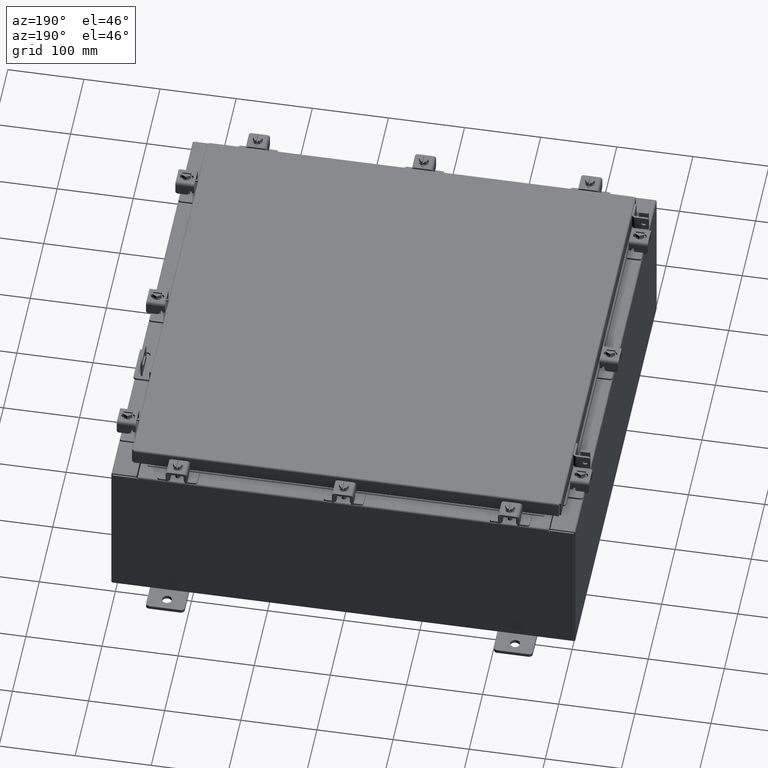
[diagram: clean part render]
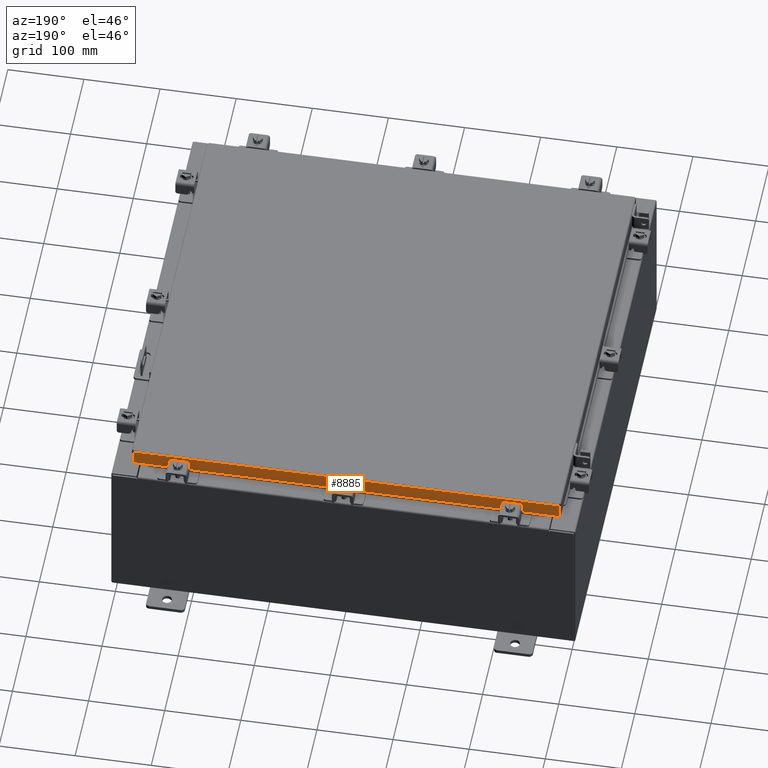
[diagram: same view with one face highlighted and labeled with its STEP entity id]
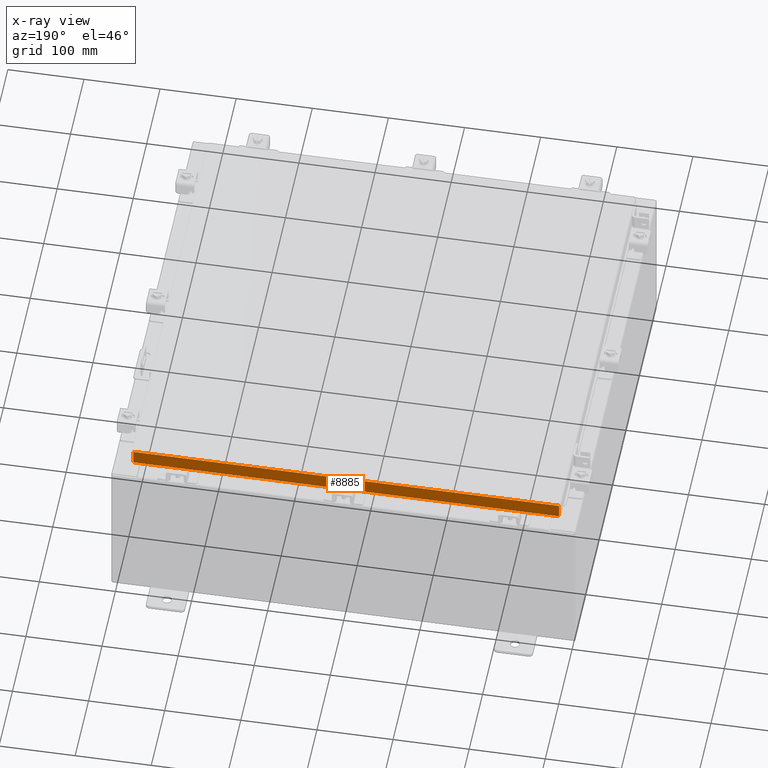
[diagram: x-ray of the same camera — body ghosted, the highlighted face saturated]
A machine part, auxiliary view. The second image highlights one B-rep face of the part: STEP entity #8885.
The next image is the same camera in x-ray: the body ghosted, the highlighted face saturated — about 0% of this face is hidden behind the body in this view.
In plain terms, the highlighted planar face has unit normal (0, -1, -0).
Its self-contained STEP definition (entity closure, byte-faithful):
#803 = EDGE_CURVE ( 'NONE', #3286, #906, #19924, .T. ) ;
#906 = VERTEX_POINT ( 'NONE', #9811 ) ;
#1060 = LINE ( 'NONE', #1516, #9816 ) ;
#1185 = ORIENTED_EDGE ( 'NONE', *, *, #803, .F. ) ;
#1284 = VERTEX_POINT ( 'NONE', #8268 ) ;
#1481 = ORIENTED_EDGE ( 'NONE', *, *, #5397, .F. ) ;
#1515 = VECTOR ( 'NONE', #4320, 39.37007874015748100 ) ;
#1516 = CARTESIAN_POINT ( 'NONE',  ( -11.09399999999999900, 11.09400000000000100, -0.8500000000000020900 ) ) ;
#1852 = EDGE_CURVE ( 'NONE', #5447, #1284, #11168, .T. ) ;
#2973 = CARTESIAN_POINT ( 'NONE',  ( -11.00515786437626700, 11.09400000000000100, -0.8500000000000020900 ) ) ;
#3286 = VERTEX_POINT ( 'NONE', #2973 ) ;
#3345 = VERTEX_POINT ( 'NONE', #12587 ) ;
#3448 = EDGE_CURVE ( 'NONE', #5447, #5768, #17377, .T. ) ;
#3797 = EDGE_CURVE ( 'NONE', #5768, #3286, #10814, .T. ) ;
#4320 = DIRECTION ( 'NONE',  ( -0.0000000000000000000, 2.818880942772350300E-015, -1.000000000000000000 ) ) ;
#4487 = CARTESIAN_POINT ( 'NONE',  ( 11.00515786437626700, 11.09399999999999900, -0.08770000000000026400 ) ) ;
#4950 = DIRECTION ( 'NONE',  ( 1.000000000000000000, -0.0000000000000000000, -0.0000000000000000000 ) ) ;
#4955 = CARTESIAN_POINT ( 'NONE',  ( -10.25515786437626400, 11.09399999999999900, -0.8500000000000054200 ) ) ;
#5397 = EDGE_CURVE ( 'NONE', #906, #3345, #20876, .T. ) ;
#5447 = VERTEX_POINT ( 'NONE', #4487 ) ;
#5644 = DIRECTION ( 'NONE',  ( 0.0000000000000000000, 2.818880942772350300E-015, -1.000000000000000000 ) ) ;
#5768 = VERTEX_POINT ( 'NONE', #12118 ) ;
#7223 = ORIENTED_EDGE ( 'NONE', *, *, #1852, .T. ) ;
#8061 = VECTOR ( 'NONE', #16343, 39.37007874015748100 ) ;
#8268 = CARTESIAN_POINT ( 'NONE',  ( 11.00515786437626700, 11.09400000000000100, -0.8499999999999999800 ) ) ;
#8885 = ADVANCED_FACE ( 'NONE', ( #9819 ), #12616, .F. ) ;
#9811 = CARTESIAN_POINT ( 'NONE',  ( -10.25515786437626900, 11.09399999999999900, -0.8500000000000054200 ) ) ;
#9816 = VECTOR ( 'NONE', #11982, 39.37007874015748100 ) ;
#9819 = FACE_OUTER_BOUND ( 'NONE', #14751, .T. ) ;
#10225 = CARTESIAN_POINT ( 'NONE',  ( -11.00515786437626700, 11.09399999999999900, -0.07470000000000015500 ) ) ;
#10814 = LINE ( 'NONE', #10225, #1515 ) ;
#11001 = ORIENTED_EDGE ( 'NONE', *, *, #3448, .F. ) ;
#11168 = LINE ( 'NONE', #11820, #19886 ) ;
#11225 = AXIS2_PLACEMENT_3D ( 'NONE', #21211, #16104, #5644 ) ;
#11820 = CARTESIAN_POINT ( 'NONE',  ( 11.00515786437626700, 11.09399999999999900, 3.168943672650545400E-014 ) ) ;
#11906 = DIRECTION ( 'NONE',  ( 0.0000000000000000000, 2.818880942772350300E-015, -1.000000000000000000 ) ) ;
#11982 = DIRECTION ( 'NONE',  ( 1.000000000000000000, -4.379057701015054300E-047, 1.231227687788112800E-016 ) ) ;
#12118 = CARTESIAN_POINT ( 'NONE',  ( -11.00515786437626700, 11.09399999999999900, -0.08770000000000026400 ) ) ;
#12587 = CARTESIAN_POINT ( 'NONE',  ( 10.25515786437625500, 11.09399999999999900, -0.8500000000000054200 ) ) ;
#12616 = PLANE ( 'NONE',  #11225 ) ;
#12855 = CARTESIAN_POINT ( 'NONE',  ( -11.09399999999999900, 11.09399999999999900, -0.08770000000000026400 ) ) ;
#14276 = ORIENTED_EDGE ( 'NONE', *, *, #3797, .F. ) ;
#14751 = EDGE_LOOP ( 'NONE', ( #11001, #7223, #15729, #1481, #1185, #14276 ) ) ;
#15729 = ORIENTED_EDGE ( 'NONE', *, *, #21972, .F. ) ;
#16104 = DIRECTION ( 'NONE',  ( 3.470684265319575600E-031, -1.000000000000000000, -2.818880942772350300E-015 ) ) ;
#16211 = VECTOR ( 'NONE', #4950, 39.37007874015748100 ) ;
#16343 = DIRECTION ( 'NONE',  ( -1.000000000000000000, -3.470684265319576000E-031, -9.460278716967629600E-046 ) ) ;
#17377 = LINE ( 'NONE', #12855, #8061 ) ;
#18682 = CARTESIAN_POINT ( 'NONE',  ( -11.09399999999999900, 11.09400000000000100, -0.8500000000000020900 ) ) ;
#18768 = DIRECTION ( 'NONE',  ( 1.000000000000000000, -4.379057701015054300E-047, 1.231227687788112800E-016 ) ) ;
#19401 = VECTOR ( 'NONE', #18768, 39.37007874015748100 ) ;
#19886 = VECTOR ( 'NONE', #11906, 39.37007874015748100 ) ;
#19924 = LINE ( 'NONE', #18682, #19401 ) ;
#20876 = LINE ( 'NONE', #4955, #16211 ) ;
#21211 = CARTESIAN_POINT ( 'NONE',  ( 0.0000000000000000000, 11.09399999999999900, 3.168943672650545400E-014 ) ) ;
#21972 = EDGE_CURVE ( 'NONE', #3345, #1284, #1060, .T. ) ;